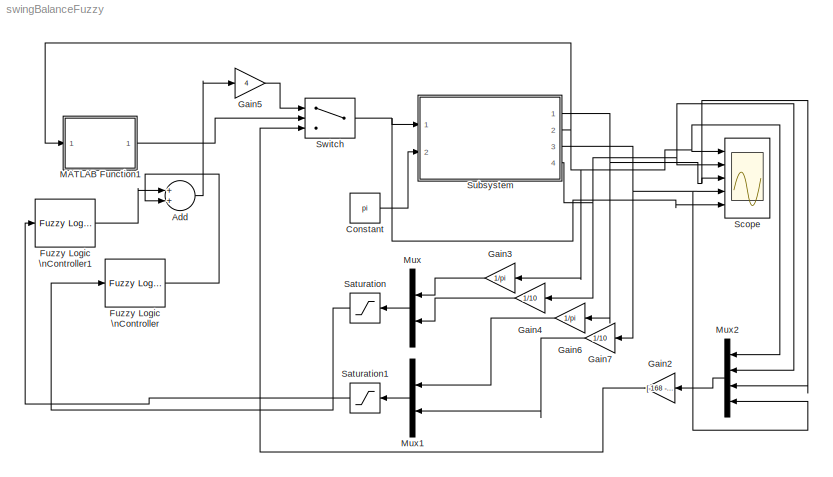
MODEL swingBalanceFuzzy
KIND model
CONFIG StopFcn = subplot(2,1,1);\nplot(Data.time,Data.signals(1,1).values,'-r','LineWidth',1.5)\nlegend('alpha');\ngrid;\nylabel('alpha [rad]]');\ntitle('Pendulum');\n%subplot(2,1,2);\n%plot(Data.time,Data.signals(1,2).values,'-c','LineWidth',2.5)\n%hold on;\n%plot(Data.time,Data.signals(1,3).values,'--b','LineWidth',2)\n%grid;\n%legend('y','y dot');\n%ylabel('Position of Ball [m]');\nsubplot(2,1,2);\nplot(Data.ti...<+100ch>
BLOCK [Sum] Add
  InputSameDT = off
  OutDataTypeStr = Inherit: Inherit via internal rule
  Ports = [2, 1]
  SID = 1
  SaturateOnIntegerOverflow = off
BLOCK [Constant] Constant
  SID = 2
  Value = pi
BLOCK [Reference] Fuzzy Logic \nController  REF=fuzblock/Fuzzy Logic \nController  (lib defined in mdl_858b3b3e7478)
  Ports = [1, 1]
  SID = 3
  SourceBlock = fuzblock/Fuzzy Logic \nController
  SourceType = FIS
  fis = 'SimpleFLC2input.fis'
BLOCK [Reference] Fuzzy Logic \nController1  REF=fuzblock/Fuzzy Logic \nController  (lib defined in mdl_858b3b3e7478)
  Ports = [1, 1]
  SID = 4
  SourceBlock = fuzblock/Fuzzy Logic \nController
  SourceType = FIS
  fis = 'SimpleFLC2input.fis'
BLOCK [Gain] Gain2
  Gain = [-168 -22 10 10]
  Multiplication = Matrix(K*u)
  OutDataTypeStr = Inherit: Inherit via internal rule
  ParamDataTypeStr = Inherit: Inherit via internal rule
  SID = 6
  SaturateOnIntegerOverflow = off
BLOCK [Gain] Gain3
  Gain = 1/pi
  OutDataTypeStr = Inherit: Inherit via internal rule
  ParamDataTypeStr = Inherit: Inherit via internal rule
  SID = 7
  SaturateOnIntegerOverflow = off
BLOCK [Gain] Gain4
  Gain = 1/10
  OutDataTypeStr = Inherit: Inherit via internal rule
  ParamDataTypeStr = Inherit: Inherit via internal rule
  SID = 8
  SaturateOnIntegerOverflow = off
BLOCK [Gain] Gain5
  Gain = 4
  OutDataTypeStr = Inherit: Inherit via internal rule
  ParamDataTypeStr = Inherit: Inherit via internal rule
  SID = 9
  SaturateOnIntegerOverflow = off
BLOCK [Gain] Gain6
  Gain = 1/pi
  OutDataTypeStr = Inherit: Inherit via internal rule
  ParamDataTypeStr = Inherit: Inherit via internal rule
  SID = 10
  SaturateOnIntegerOverflow = off
BLOCK [Gain] Gain7
  Gain = 1/10
  OutDataTypeStr = Inherit: Inherit via internal rule
  ParamDataTypeStr = Inherit: Inherit via internal rule
  SID = 11
  SaturateOnIntegerOverflow = off
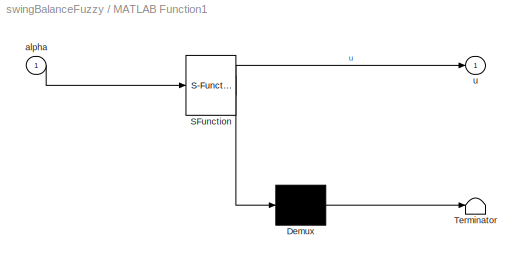
BLOCK [SubSystem] MATLAB Function1
  ErrorFcn = Stateflow.Translate.translate
  FunctionWithSeparateData = off
  MaskHideContents = off
  MinAlgLoopOccurrences = off
  Opaque = off
  PermitHierarchicalResolution = ExplicitOnly
  Ports = [1, 1]
  PropExecContextOutsideSubsystem = off
  RTWSystemCode = Auto
  RequestExecContextInheritance = off
  SFBlockType = MATLAB Function
  SID = 13
  TreatAsAtomicUnit = on
BLOCK [Demux] MATLAB Function1/ Demux 
  Outputs = 1
  Ports = [1, 1]
  SID = 13::19
BLOCK [S-Function] MATLAB Function1/ SFunction 
  EnableBusSupport = on
  FunctionName = sf_sfun
  PortCounts = [1 2]
  Ports = [1, 2]
  SID = 13::18
  Tag = Stateflow S-Function swingBalanceFuzzy 1
BLOCK [Terminator] MATLAB Function1/ Terminator 
  SID = 13::20
BLOCK [Inport] MATLAB Function1/alpha
  IconDisplay = Port number
  SID = 13::21
BLOCK [Outport] MATLAB Function1/u
  IconDisplay = Port number
  SID = 13::23
BLOCK [Mux] Mux
  DisplayOption = bar
  Inputs = 2
  Ports = [2, 1]
  SID = 14
BLOCK [Mux] Mux1
  DisplayOption = bar
  Inputs = 2
  Ports = [2, 1]
  SID = 15
BLOCK [Mux] Mux2
  DisplayOption = bar
  Ports = [4, 1]
  SID = 16
BLOCK [Saturate] Saturation
  InputPortMap = u0
  LowerLimit = -1
  Ports = [1, 1]
  SID = 17
  UpperLimit = 1
BLOCK [Saturate] Saturation1
  InputPortMap = u0
  LowerLimit = -1
  Ports = [1, 1]
  SID = 18
  UpperLimit = 1
BLOCK [Scope] Scope
  DataFormat = StructureWithTime
  Floating = off
  LimitDataPoints = off
  NumInputPorts = 5
  Ports = [5]
  SID = 19
  SampleTime = 0
  SaveName = Data
  SaveToWorkspace = on
  ShowLegends = off
  TimeRange = 30
  YMax = 13~20~-600~-70~-10
  YMin = 0~-20~-1700~-105~-24
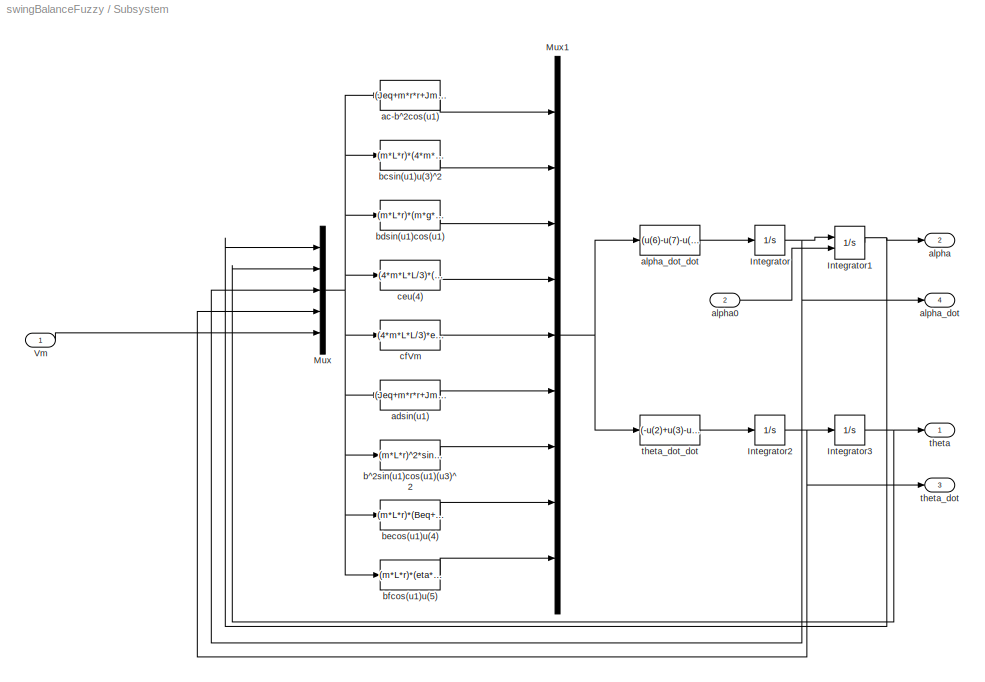
BLOCK [SubSystem] Subsystem
  FunctionWithSeparateData = off
  MaskHideContents = off
  MinAlgLoopOccurrences = off
  Opaque = off
  Ports = [2, 4]
  PropExecContextOutsideSubsystem = off
  RTWSystemCode = Auto
  RequestExecContextInheritance = off
  SID = 20
BLOCK [Integrator] Subsystem/Integrator
  LowerSaturationLimit = -pi/18
  Ports = [1, 1]
  SID = 23
  UpperSaturationLimit = pi/18
BLOCK [Integrator] Subsystem/Integrator1
  InitialCondition = pi
  InitialConditionSource = external
  LowerSaturationLimit = -pi/18
  Ports = [2, 1]
  SID = 24
  UpperSaturationLimit = pi/18
BLOCK [Integrator] Subsystem/Integrator2
  Ports = [1, 1]
  SID = 25
BLOCK [Integrator] Subsystem/Integrator3
  LowerSaturationLimit = -2
  Ports = [1, 1]
  SID = 26
  UpperSaturationLimit = 2
BLOCK [Mux] Subsystem/Mux
  DisplayOption = bar
  Inputs = 5
  Ports = [5, 1]
  SID = 27
BLOCK [Mux] Subsystem/Mux1
  DisplayOption = bar
  Inputs = 9
  Ports = [9, 1]
  SID = 28
BLOCK [Inport] Subsystem/Vm
  IconDisplay = Port number
  SID = 21
BLOCK [Fcn] Subsystem/ac-b^2cos(u1)
  Expr = (Jeq+m*r*r+Jm)*(4*m*L*L/3)-(m*L*r)^2*cos(u(1))
  SID = 29
BLOCK [Fcn] Subsystem/adsin(u1)
  Expr = (Jeq+m*r*r+Jm)*(m*g*L)*sin(u(1))
  SID = 30
BLOCK [Outport] Subsystem/alpha
  IconDisplay = Port number
  Port = 2
  SID = 41
BLOCK [Inport] Subsystem/alpha0
  IconDisplay = Port number
  Port = 2
  SID = 22
BLOCK [Outport] Subsystem/alpha_dot
  IconDisplay = Port number
  Port = 4
  SID = 43
BLOCK [Fcn] Subsystem/alpha_dot_dot
  Expr = (u(6)-u(7)-u(8)+u(9))/u(1)
  SID = 31
BLOCK [Fcn] Subsystem/b^2sin(u1)cos(u1)(u3)^2
  Expr = (m*L*r)^2*sin(u(1))*cos(u(1))*(u(3))^2
  SID = 32
BLOCK [Fcn] Subsystem/bcsin(u1)u(3)^2
  Expr = (m*L*r)*(4*m*L*L/3)*sin(u(1))*u(3)*u(3)
  SID = 33
BLOCK [Fcn] Subsystem/bdsin(u1)cos(u1)
  Expr = (m*L*r)*(m*g*L)*sin(u(1))*cos(u(1))
  SID = 34
BLOCK [Fcn] Subsystem/becos(u1)u(4)
  Expr = (m*L*r)*(Beq+eta*Kt*Km/Rm)*cos(u(1))*u(4)
  SID = 35
BLOCK [Fcn] Subsystem/bfcos(u1)u(5)
  Expr = (m*L*r)*(eta*Kt/Rm)*cos(u(1))*u(5)
  SID = 36
BLOCK [Fcn] Subsystem/ceu(4)
  Expr = (4*m*L*L/3)*(Beq+eta*Kt*Km/Rm)*u(4)
  SID = 37
BLOCK [Fcn] Subsystem/cfVm
  Expr = (4*m*L*L/3)*eta*Kt/Rm*u(5)
  SID = 38
BLOCK [Outport] Subsystem/theta
  IconDisplay = Port number
  SID = 40
BLOCK [Outport] Subsystem/theta_dot
  IconDisplay = Port number
  Port = 3
  SID = 42
BLOCK [Fcn] Subsystem/theta_dot_dot
  Expr = (-u(2)+u(3)-u(4)+u(5))/u(1)
  SID = 39
BLOCK [Switch] Switch
  InputSameDT = off
  SID = 56
  SaturateOnIntegerOverflow = off
  Threshold = 1
LINE Add:1 -> Gain5:1
LINE Constant:1 -> Subsystem:2
LINE Fuzzy Logic \nController1:1 -> Add:1
LINE Fuzzy Logic \nController:1 -> Add:2
LINE Gain2:1 -> Switch:3
LINE Gain3:1 -> Mux:1
LINE Gain4:1 -> Mux:2
LINE Gain5:1 -> Switch:1
LINE Gain6:1 -> Mux1:1
LINE Gain7:1 -> Mux1:2
LINE MATLAB Function1/ Demux :1 -> MATLAB Function1/ Terminator :1
LINE MATLAB Function1/ SFunction :1 -> MATLAB Function1/ Demux :1
LINE MATLAB Function1/ SFunction :2 -> MATLAB Function1/u:1
LINE MATLAB Function1/alpha:1 -> MATLAB Function1/ SFunction :1
LINE MATLAB Function1:1 -> Switch:2
LINE Mux1:1 -> Saturation1:1
LINE Mux2:1 -> Gain2:1
LINE Mux:1 -> Saturation:1
LINE Saturation1:1 -> Fuzzy Logic \nController1:1
LINE Saturation:1 -> Fuzzy Logic \nController:1
NET Subsystem/Integrator1:1 -> Subsystem/Mux:1, Subsystem/alpha:1
NET Subsystem/Integrator2:1 -> Subsystem/Integrator3:1, Subsystem/Mux:4, Subsystem/theta_dot:1
NET Subsystem/Integrator3:1 -> Subsystem/Mux:2, Subsystem/theta:1
NET Subsystem/Integrator:1 -> Subsystem/Integrator1:1, Subsystem/Mux:3, Subsystem/alpha_dot:1
NET Subsystem/Mux1:1 -> Subsystem/alpha_dot_dot:1, Subsystem/theta_dot_dot:1
NET Subsystem/Mux:1 -> Subsystem/ac-b^2cos(u1):1, Subsystem/adsin(u1):1, Subsystem/b^2sin(u1)cos(u1)(u3)^2:1, Subsystem/bcsin(u1)u(3)^2:1, Subsystem/bdsin(u1)cos(u1):1, Subsystem/becos(u1)u(4):1, Subsystem/bfcos(u1)u(5):1, Subsystem/ceu(4):1, Subsystem/cfVm:1
LINE Subsystem/Vm:1 -> Subsystem/Mux:5
LINE Subsystem/ac-b^2cos(u1):1 -> Subsystem/Mux1:1
LINE Subsystem/adsin(u1):1 -> Subsystem/Mux1:6
LINE Subsystem/alpha0:1 -> Subsystem/Integrator1:2
LINE Subsystem/alpha_dot_dot:1 -> Subsystem/Integrator:1
LINE Subsystem/b^2sin(u1)cos(u1)(u3)^2:1 -> Subsystem/Mux1:7
LINE Subsystem/bcsin(u1)u(3)^2:1 -> Subsystem/Mux1:2
LINE Subsystem/bdsin(u1)cos(u1):1 -> Subsystem/Mux1:3
LINE Subsystem/becos(u1)u(4):1 -> Subsystem/Mux1:8
LINE Subsystem/bfcos(u1)u(5):1 -> Subsystem/Mux1:9
LINE Subsystem/ceu(4):1 -> Subsystem/Mux1:4
LINE Subsystem/cfVm:1 -> Subsystem/Mux1:5
LINE Subsystem/theta_dot_dot:1 -> Subsystem/Integrator2:1
NET Subsystem:1 -> Gain6:1, Mux2:3, Scope:3
NET Subsystem:2 -> Gain3:1, MATLAB Function1:1, Mux2:1, Scope:1
NET Subsystem:3 -> Gain7:1, Mux2:4, Scope:4
NET Subsystem:4 -> Gain4:1, Mux2:2, Scope:2
NET Switch:1 -> Scope:5, Subsystem:1
note: NET lines group one-source signal fan-out (src -> all destinations, sorted); 1:1 wires keep LINE
CHART MATLAB Function1 states=1 transitions=1
  STATE_LABEL 'eML_blk_kernel()'
